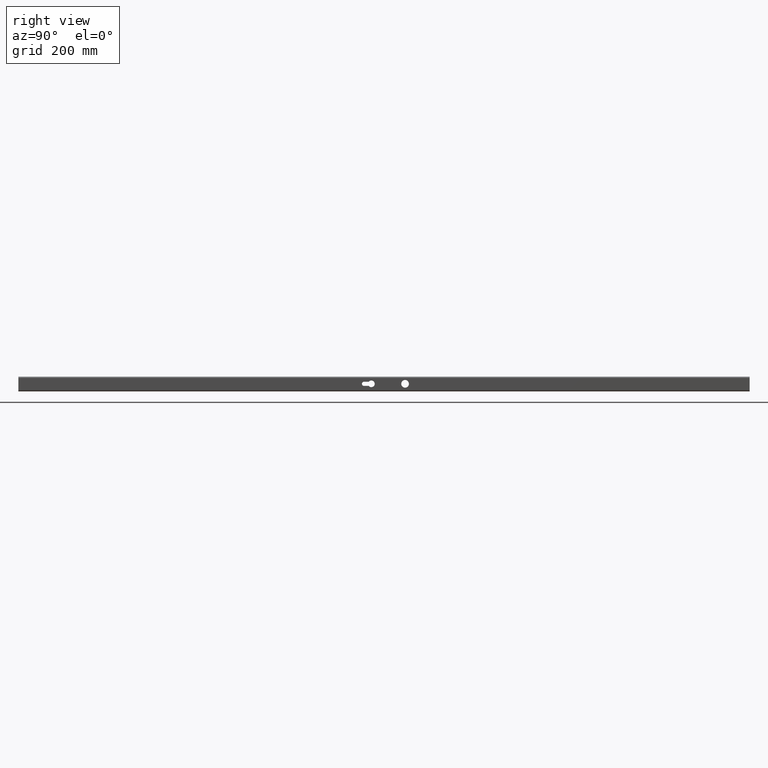
[diagram: clean part render]
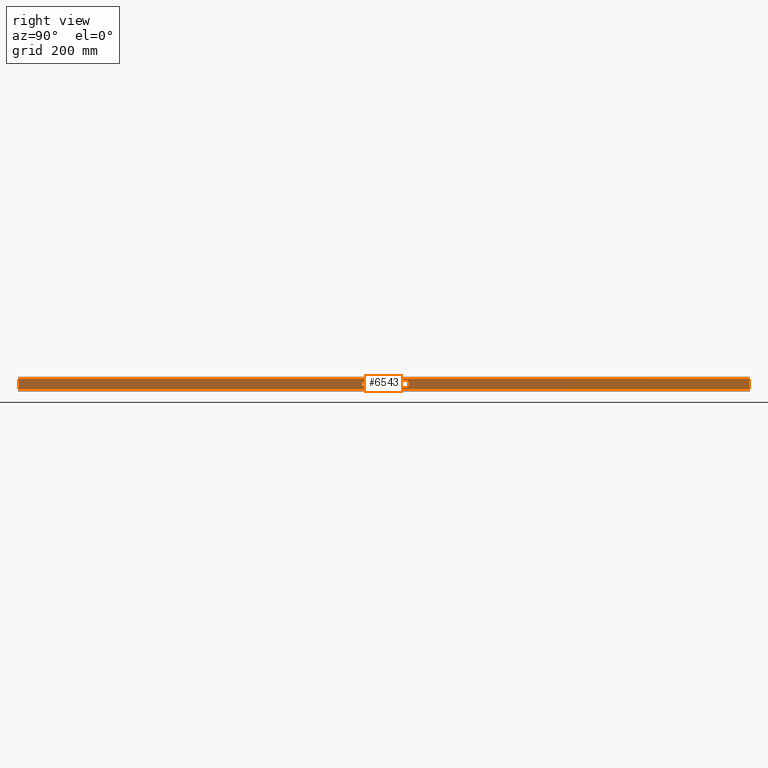
[diagram: same view with one face highlighted and labeled with its STEP entity id]
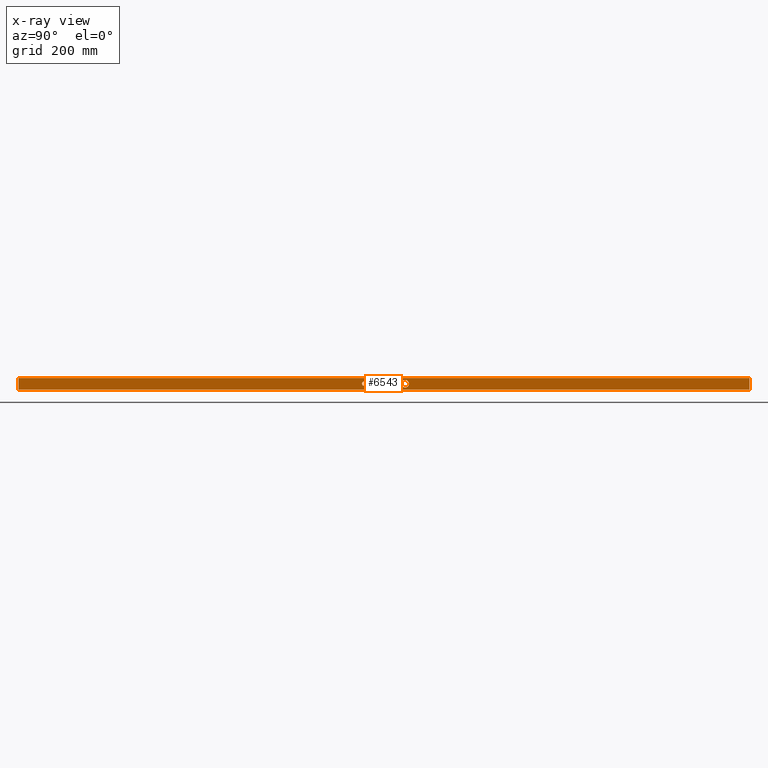
[diagram: x-ray of the same camera — body ghosted, the highlighted face saturated]
A machine part, right view. The second image highlights one B-rep face of the part: STEP entity #6543.
The next image is the same camera in x-ray: the body ghosted, the highlighted face saturated — about 0% of this face is hidden behind the body in this view.
In plain terms, the highlighted planar face has unit normal (-1, 0, 0).
Its self-contained STEP definition (entity closure, byte-faithful):
#176 = AXIS2_PLACEMENT_3D ( 'NONE', #10341, #7282, #4400 ) ;
#268 = ORIENTED_EDGE ( 'NONE', *, *, #1755, .F. ) ;
#345 = DIRECTION ( 'NONE',  ( -0.000000000000000000, -0.000000000000000000, -1.000000000000000000 ) ) ;
#352 = EDGE_CURVE ( 'NONE', #11971, #1665, #5226, .T. ) ;
#420 = DIRECTION ( 'NONE',  ( 1.000000000000000000, 0.000000000000000000, 0.000000000000000000 ) ) ;
#513 = FACE_BOUND ( 'NONE', #9469, .T. ) ;
#663 = EDGE_CURVE ( 'NONE', #1073, #1073, #1828, .T. ) ;
#667 = DIRECTION ( 'NONE',  ( -0.000000000000000000, -1.000000000000000000, -0.000000000000000000 ) ) ;
#676 = FACE_OUTER_BOUND ( 'NONE', #8948, .T. ) ;
#792 = CARTESIAN_POINT ( 'NONE',  ( 20.00000000000000355, 57.50000000000010658, -10.00000000000001066 ) ) ;
#835 = CARTESIAN_POINT ( 'NONE',  ( 20.00000000000000355, -41.69722168617852276, -5.150000000000002132 ) ) ;
#1073 = VERTEX_POINT ( 'NONE', #792 ) ;
#1444 = CARTESIAN_POINT ( 'NONE',  ( 20.00000000000000355, 997.5000000000000000, 15.99999999999999645 ) ) ;
#1451 = DIRECTION ( 'NONE',  ( 0.000000000000000000, 0.000000000000000000, -1.000000000000000000 ) ) ;
#1593 = ORIENTED_EDGE ( 'NONE', *, *, #8591, .F. ) ;
#1665 = VERTEX_POINT ( 'NONE', #7494 ) ;
#1755 = EDGE_CURVE ( 'NONE', #7574, #4564, #11401, .T. ) ;
#1828 = CIRCLE ( 'NONE', #2271, 10.50000000000000711 ) ;
#2271 = AXIS2_PLACEMENT_3D ( 'NONE', #3182, #10994, #7111 ) ;
#2525 = EDGE_CURVE ( 'NONE', #12804, #6308, #7826, .T. ) ;
#2529 = ORIENTED_EDGE ( 'NONE', *, *, #352, .T. ) ;
#2564 = ORIENTED_EDGE ( 'NONE', *, *, #663, .F. ) ;
#2761 = DIRECTION ( 'NONE',  ( -0.000000000000000000, 1.000000000000000000, 2.001176326446564495E-16 ) ) ;
#2801 = VECTOR ( 'NONE', #667, 1000.000000000000000 ) ;
#3182 = CARTESIAN_POINT ( 'NONE',  ( 20.00000000000000355, 57.50000000000010658, 0.4999999999999970024 ) ) ;
#3287 = FACE_BOUND ( 'NONE', #10303, .T. ) ;
#3338 = PLANE ( 'NONE',  #176 ) ;
#3521 = VECTOR ( 'NONE', #7621, 1000.000000000000000 ) ;
#3726 = CARTESIAN_POINT ( 'NONE',  ( 20.00000000000000355, 997.5000000000000000, -16.00000000000000355 ) ) ;
#4135 = CARTESIAN_POINT ( 'NONE',  ( 20.00000000000000355, -54.69999999999989626, 6.149999999999998579 ) ) ;
#4275 = CARTESIAN_POINT ( 'NONE',  ( 20.00000000000000355, -54.69999999999989626, 0.4999999999999970024 ) ) ;
#4400 = DIRECTION ( 'NONE',  ( 0.000000000000000000, 0.000000000000000000, 1.000000000000000000 ) ) ;
#4481 = CARTESIAN_POINT ( 'NONE',  ( 20.00000000000000355, -41.69722168617852276, -5.150000000000000355 ) ) ;
#4564 = VERTEX_POINT ( 'NONE', #7548 ) ;
#4794 = CARTESIAN_POINT ( 'NONE',  ( 20.00000000000000355, 997.5000000000000000, 15.99999999999999645 ) ) ;
#4888 = CARTESIAN_POINT ( 'NONE',  ( 20.00000000000000355, -54.69999999999997442, -5.150000000000004796 ) ) ;
#5077 = VECTOR ( 'NONE', #345, 1000.000000000000000 ) ;
#5226 = LINE ( 'NONE', #8226, #5077 ) ;
#5359 = CARTESIAN_POINT ( 'NONE',  ( 20.00000000000000355, -34.49999999999989342, 0.4999999999999970024 ) ) ;
#5368 = DIRECTION ( 'NONE',  ( 1.000000000000000000, 0.000000000000000000, 0.000000000000000000 ) ) ;
#5630 = VECTOR ( 'NONE', #8920, 1000.000000000000000 ) ;
#5934 = AXIS2_PLACEMENT_3D ( 'NONE', #4275, #5368, #1451 ) ;
#6201 = ORIENTED_EDGE ( 'NONE', *, *, #6528, .F. ) ;
#6280 = EDGE_CURVE ( 'NONE', #7574, #11971, #7363, .T. ) ;
#6308 = VERTEX_POINT ( 'NONE', #4135 ) ;
#6496 = CARTESIAN_POINT ( 'NONE',  ( 20.00000000000000355, -41.69722168617852276, 6.149999999999997691 ) ) ;
#6528 = EDGE_CURVE ( 'NONE', #6308, #11766, #11002, .T. ) ;
#6543 = ADVANCED_FACE ( 'NONE', ( #3287, #513, #676 ), #3338, .F. ) ;
#6817 = DIRECTION ( 'NONE',  ( -0.000000000000000000, -1.000000000000000000, 6.670587754821882060E-17 ) ) ;
#7111 = DIRECTION ( 'NONE',  ( 0.000000000000000000, 0.000000000000000000, -1.000000000000000000 ) ) ;
#7148 = VERTEX_POINT ( 'NONE', #4481 ) ;
#7282 = DIRECTION ( 'NONE',  ( -1.000000000000000000, 0.000000000000000000, 0.000000000000000000 ) ) ;
#7319 = DIRECTION ( 'NONE',  ( 0.000000000000000000, 0.000000000000000000, -1.000000000000000000 ) ) ;
#7363 = LINE ( 'NONE', #4794, #5630 ) ;
#7424 = ORIENTED_EDGE ( 'NONE', *, *, #7667, .F. ) ;
#7494 = CARTESIAN_POINT ( 'NONE',  ( 20.00000000000000355, -997.5000000000000000, -16.00000000000000355 ) ) ;
#7548 = CARTESIAN_POINT ( 'NONE',  ( 20.00000000000000355, 997.5000000000000000, -16.00000000000000355 ) ) ;
#7574 = VERTEX_POINT ( 'NONE', #1444 ) ;
#7621 = DIRECTION ( 'NONE',  ( -0.000000000000000000, -0.000000000000000000, -1.000000000000000000 ) ) ;
#7667 = EDGE_CURVE ( 'NONE', #7148, #12804, #9573, .T. ) ;
#7681 = VECTOR ( 'NONE', #6817, 1000.000000000000000 ) ;
#7826 = LINE ( 'NONE', #9653, #7681 ) ;
#8226 = CARTESIAN_POINT ( 'NONE',  ( 20.00000000000000355, -997.5000000000000000, -16.00000000000000355 ) ) ;
#8500 = EDGE_CURVE ( 'NONE', #4564, #1665, #9095, .T. ) ;
#8550 = CARTESIAN_POINT ( 'NONE',  ( 20.00000000000000355, 997.5000000000000000, -16.00000000000000355 ) ) ;
#8591 = EDGE_CURVE ( 'NONE', #11766, #7148, #11426, .T. ) ;
#8777 = VECTOR ( 'NONE', #2761, 1000.000000000000000 ) ;
#8920 = DIRECTION ( 'NONE',  ( -0.000000000000000000, -1.000000000000000000, -0.000000000000000000 ) ) ;
#8948 = EDGE_LOOP ( 'NONE', ( #2529, #10776, #268, #10398 ) ) ;
#9095 = LINE ( 'NONE', #8550, #2801 ) ;
#9469 = EDGE_LOOP ( 'NONE', ( #2564 ) ) ;
#9573 = CIRCLE ( 'NONE', #10663, 9.149999999999998579 ) ;
#9653 = CARTESIAN_POINT ( 'NONE',  ( 20.00000000000000355, -54.69999999999989626, 6.149999999999998579 ) ) ;
#10303 = EDGE_LOOP ( 'NONE', ( #1593, #6201, #10427, #7424 ) ) ;
#10341 = CARTESIAN_POINT ( 'NONE',  ( 20.00000000000000355, 997.5000000000000000, -16.00000000000000355 ) ) ;
#10398 = ORIENTED_EDGE ( 'NONE', *, *, #6280, .T. ) ;
#10415 = CARTESIAN_POINT ( 'NONE',  ( 20.00000000000000355, -997.5000000000000000, 15.99999999999999645 ) ) ;
#10427 = ORIENTED_EDGE ( 'NONE', *, *, #2525, .F. ) ;
#10663 = AXIS2_PLACEMENT_3D ( 'NONE', #5359, #420, #7319 ) ;
#10776 = ORIENTED_EDGE ( 'NONE', *, *, #8500, .F. ) ;
#10994 = DIRECTION ( 'NONE',  ( 1.000000000000000000, 0.000000000000000000, 0.000000000000000000 ) ) ;
#11002 = CIRCLE ( 'NONE', #5934, 5.650000000000001243 ) ;
#11401 = LINE ( 'NONE', #3726, #3521 ) ;
#11426 = LINE ( 'NONE', #835, #8777 ) ;
#11766 = VERTEX_POINT ( 'NONE', #4888 ) ;
#11971 = VERTEX_POINT ( 'NONE', #10415 ) ;
#12804 = VERTEX_POINT ( 'NONE', #6496 ) ;